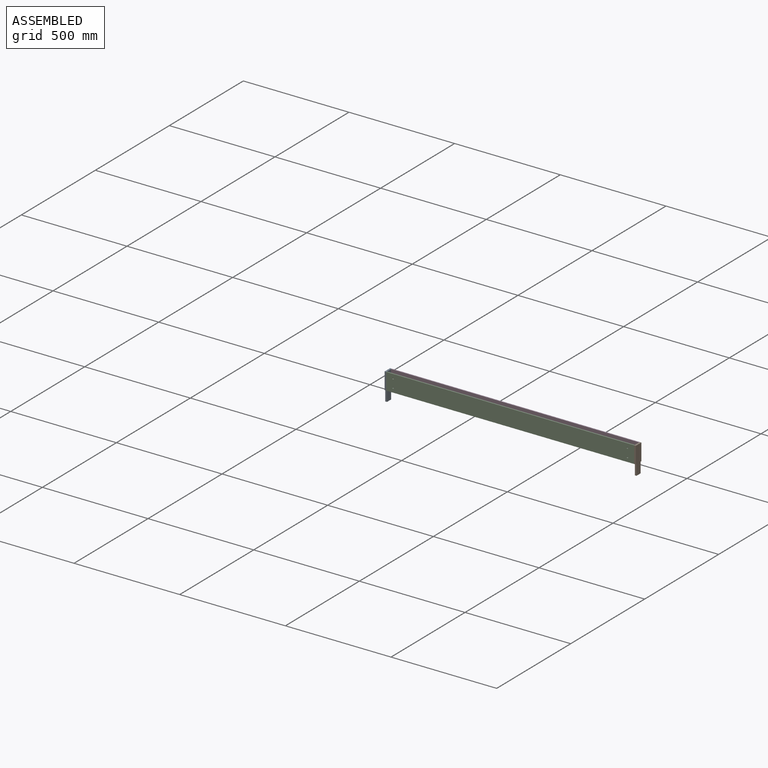
[diagram: assembled view]
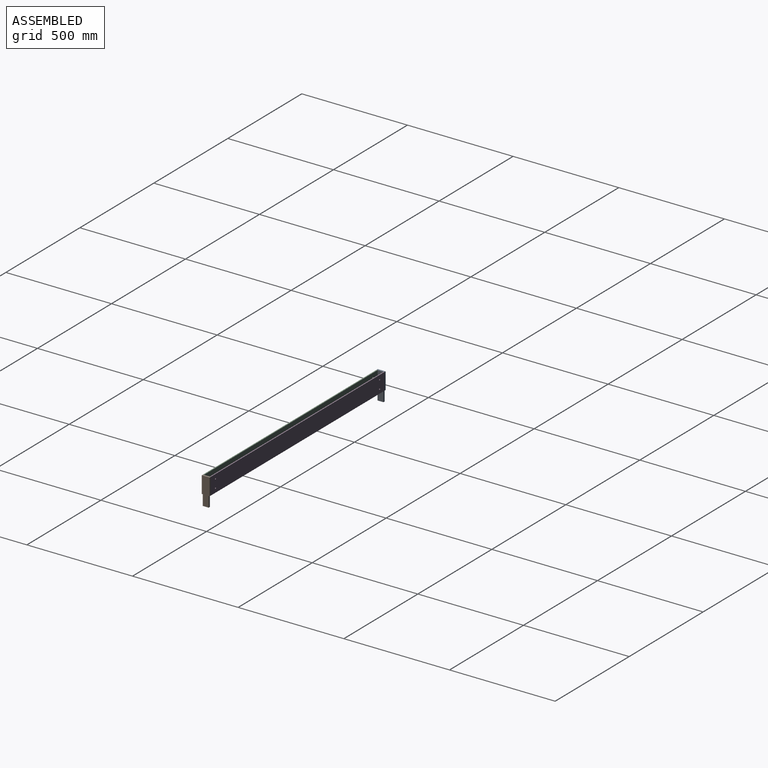
[diagram: assembled view, second angle]
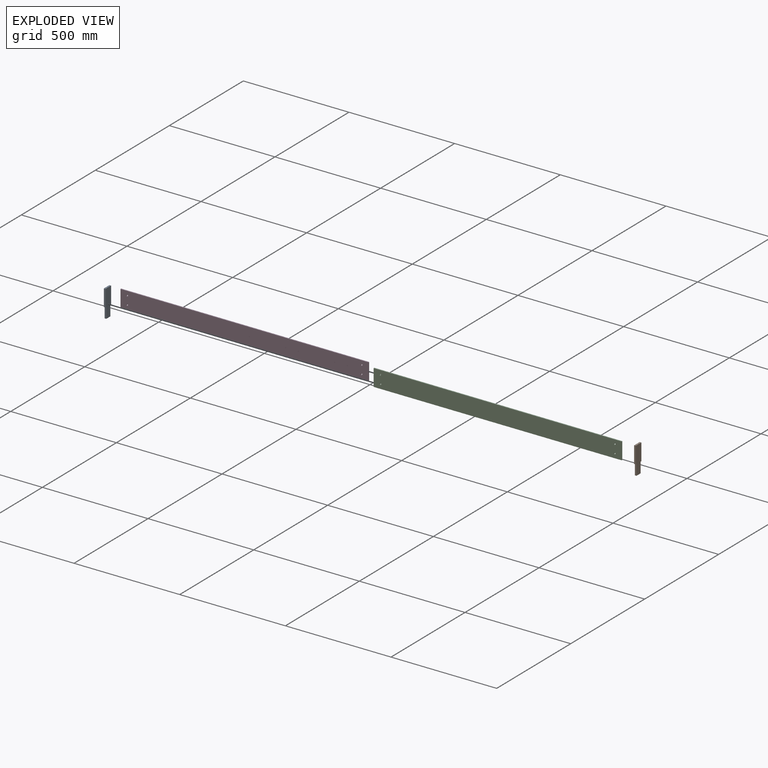
[diagram: exploded view]
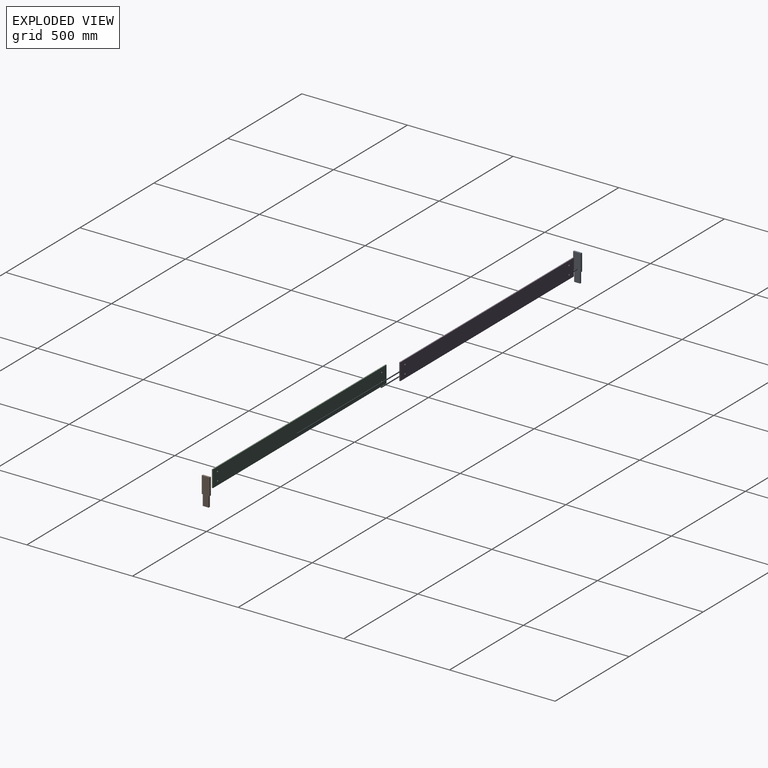
[diagram: exploded view, second angle]
ASSEMBLY  parts=4 mates=3
PART A: 10 faces, bbox 8x37x130 mm
  f0: plane 28x8mm, normal (0,0,-1), area 224mm2, adj f1,f7,f8,f9
  f1: plane 50x8mm, normal (0,1,0), area 400mm2, adj f0,f2,f8,f9
  f2: plane 8x4.5mm, normal (0,0,-1), area 36mm2, adj f1,f3,f8,f9
  f3: plane 80x8mm, normal (0,1,0), area 640mm2, adj f2,f4,f8,f9
  f4: plane 37x8mm, normal (0,0,1), area 296mm2, adj f3,f5,f8,f9
  f5: plane 80x8mm, normal (0,-1,0), area 640mm2, adj f4,f6,f8,f9
  f6: plane 8x4.5mm, normal (0,0,-1), area 36mm2, adj f5,f7,f8,f9
  f7: plane 50x8mm, normal (0,-1,0), area 400mm2, adj f0,f6,f8,f9
  f8: plane 130x37mm, normal (1,0,0), area 4360mm2, adj f0,f1,f2,f3,f4,f5,f6,f7
  f9: plane 130x37mm, normal (-1,0,0), area 4360mm2, adj f0,f1,f2,f3,f4,f5,f6,f7
PART B: same geometry as A
PART C: 10 faces, bbox 1173x5x80 mm
  f0: plane 1173x5mm, normal (0,0,1), area 5865mm2, adj f1,f7,f8,f9
  f1: plane 80x5mm, normal (-1,0,0), area 400mm2, adj f0,f2,f8,f9
  f2: plane 1173x5mm, normal (0,0,-1), area 5865mm2, adj f1,f7,f8,f9
  f3: cylinder r=3.5mm len=7mm, axis (0,1,0), area 110mm2, adj f8,f9
  f4: cylinder r=3.5mm len=7mm, axis (0,1,0), area 110mm2, adj f8,f9
  f5: cylinder r=3.5mm len=7mm, axis (0,1,0), area 110mm2, adj f8,f9
  f6: cylinder r=3.5mm len=7mm, axis (0,1,0), area 110mm2, adj f8,f9
  f7: plane 80x5mm, normal (1,0,0), area 400mm2, adj f0,f2,f8,f9
  f8: plane 1173x80mm, normal (0,-1,0), area 93686.1mm2, adj f0,f1,f2,f3,f4,f5,f6,f7
  f9: plane 1173x80mm, normal (0,1,0), area 93686.1mm2, adj f0,f1,f2,f3,f4,f5,f6,f7
PART D: same geometry as C
PLACE A t=(-340.88,-109.91,12.34)mm
PLACE B t=(840.12,-109.91,12.34)mm fixed
PLACE C t=(-332.88,-123.41,-4.78)mm
PLACE D t=(-332.88,-91.41,-4.78)mm
MATE fastened C.f7 <-> B.f9  axis (1,0,0) through (840.12,-128.41,8.24)mm
MATE fastened D.f7 <-> B.f9  axis (1,0,0) through (840.12,-91.41,8.24)mm
MATE fastened A.f8 <-> D.f1  axis (1,0,0) through (-332.88,-91.41,8.24)mm
